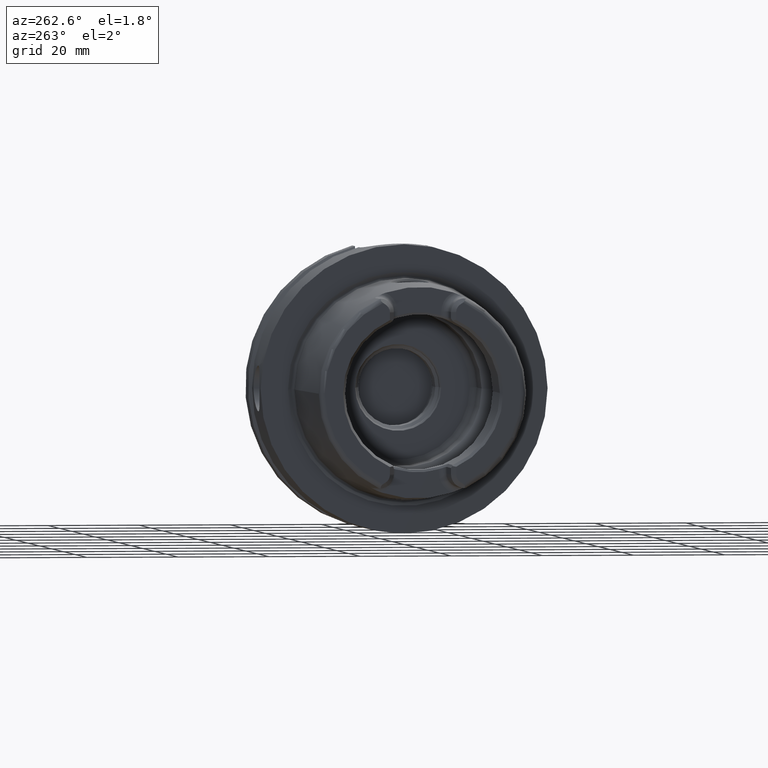
[diagram: clean part render]
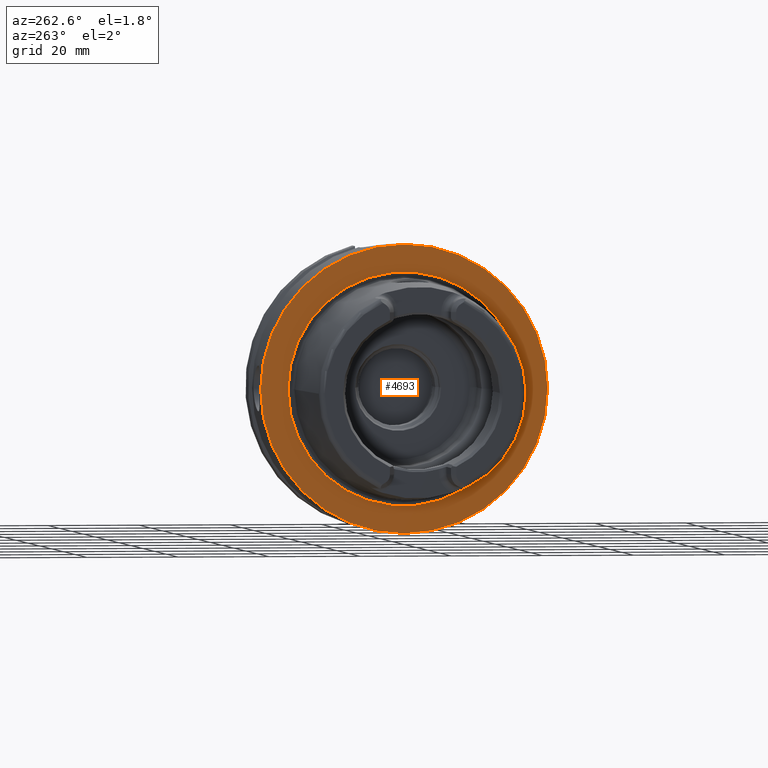
[diagram: same view with one face highlighted and labeled with its STEP entity id]
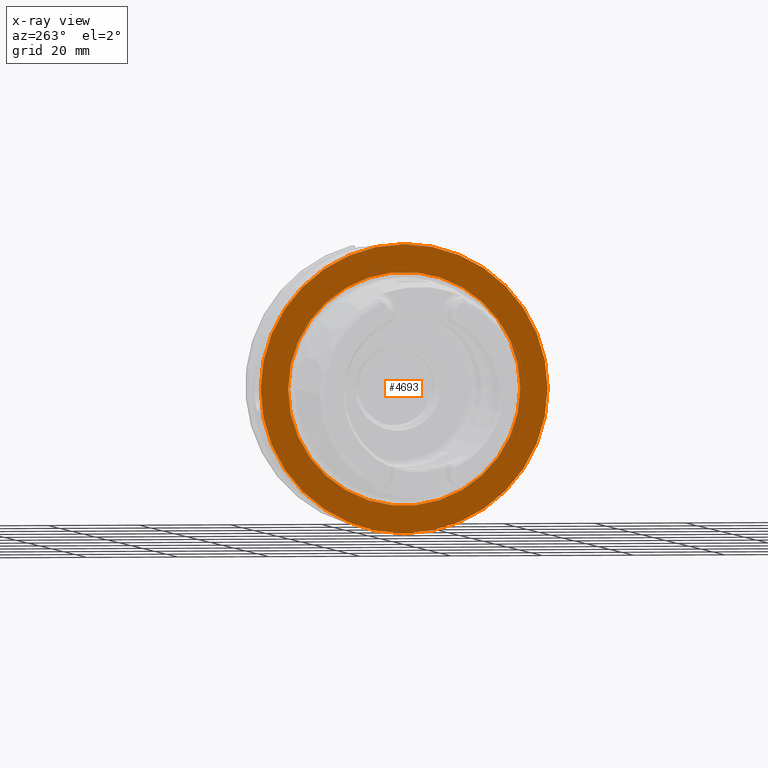
[diagram: x-ray of the same camera — body ghosted, the highlighted face saturated]
A machine part, auxiliary view. The second image highlights one B-rep face of the part: STEP entity #4693.
The next image is the same camera in x-ray: the body ghosted, the highlighted face saturated — about 4% of this face is hidden behind the body in this view.
In plain terms, the highlighted planar face has unit normal (1, 0, 0).
Its self-contained STEP definition (entity closure, byte-faithful):
#1068=CARTESIAN_POINT('',(-1.421085471520E-14,0.E0,0.E0));
#1069=DIRECTION('',(1.E0,0.E0,0.E0));
#1070=DIRECTION('',(0.E0,1.E0,0.E0));
#1071=AXIS2_PLACEMENT_3D('',#1068,#1069,#1070);
#1073=CARTESIAN_POINT('',(-1.421085471520E-14,0.E0,0.E0));
#1074=DIRECTION('',(-1.E0,0.E0,0.E0));
#1075=DIRECTION('',(0.E0,1.E0,0.E0));
#1076=AXIS2_PLACEMENT_3D('',#1073,#1074,#1075);
#1078=CARTESIAN_POINT('',(0.E0,0.E0,0.E0));
#1079=DIRECTION('',(-1.E0,0.E0,0.E0));
#1080=DIRECTION('',(0.E0,-1.E0,0.E0));
#1081=AXIS2_PLACEMENT_3D('',#1078,#1079,#1080);
#1083=CARTESIAN_POINT('',(0.E0,0.E0,0.E0));
#1084=DIRECTION('',(-1.E0,0.E0,0.E0));
#1085=DIRECTION('',(0.E0,1.E0,0.E0));
#1086=AXIS2_PLACEMENT_3D('',#1083,#1084,#1085);
#2897=CARTESIAN_POINT('',(-1.421085471520E-14,3.15E1,0.E0));
#2898=CARTESIAN_POINT('',(-1.421085471520E-14,-3.15E1,0.E0));
#2899=VERTEX_POINT('',#2897);
#2900=VERTEX_POINT('',#2898);
#2925=CARTESIAN_POINT('',(0.E0,-2.549042414966E1,0.E0));
#2926=VERTEX_POINT('',#2925);
#2927=CARTESIAN_POINT('',(0.E0,2.549042414966E1,0.E0));
#2928=VERTEX_POINT('',#2927);
#4678=CARTESIAN_POINT('',(0.E0,0.E0,0.E0));
#4679=DIRECTION('',(1.E0,0.E0,0.E0));
#4680=DIRECTION('',(0.E0,-1.E0,0.E0));
#4681=AXIS2_PLACEMENT_3D('',#4678,#4679,#4680);
#4682=PLANE('',#4681);
#4684=ORIENTED_EDGE('',*,*,#4683,.T.);
#4686=ORIENTED_EDGE('',*,*,#4685,.F.);
#4687=EDGE_LOOP('',(#4684,#4686));
#4688=FACE_OUTER_BOUND('',#4687,.F.);
#4689=ORIENTED_EDGE('',*,*,#4673,.T.);
#4690=ORIENTED_EDGE('',*,*,#4657,.T.);
#4691=EDGE_LOOP('',(#4689,#4690));
#4692=FACE_BOUND('',#4691,.F.);
#4693=ADVANCED_FACE('',(#4688,#4692),#4682,.F.);
#1072=CIRCLE('',#1071,3.15E1);
#1077=CIRCLE('',#1076,3.15E1);
#1082=CIRCLE('',#1081,2.549042414966E1);
#1087=CIRCLE('',#1086,2.549042414966E1);
#4657=EDGE_CURVE('',#2928,#2926,#1087,.T.);
#4673=EDGE_CURVE('',#2926,#2928,#1082,.T.);
#4683=EDGE_CURVE('',#2899,#2900,#1072,.T.);
#4685=EDGE_CURVE('',#2899,#2900,#1077,.T.);